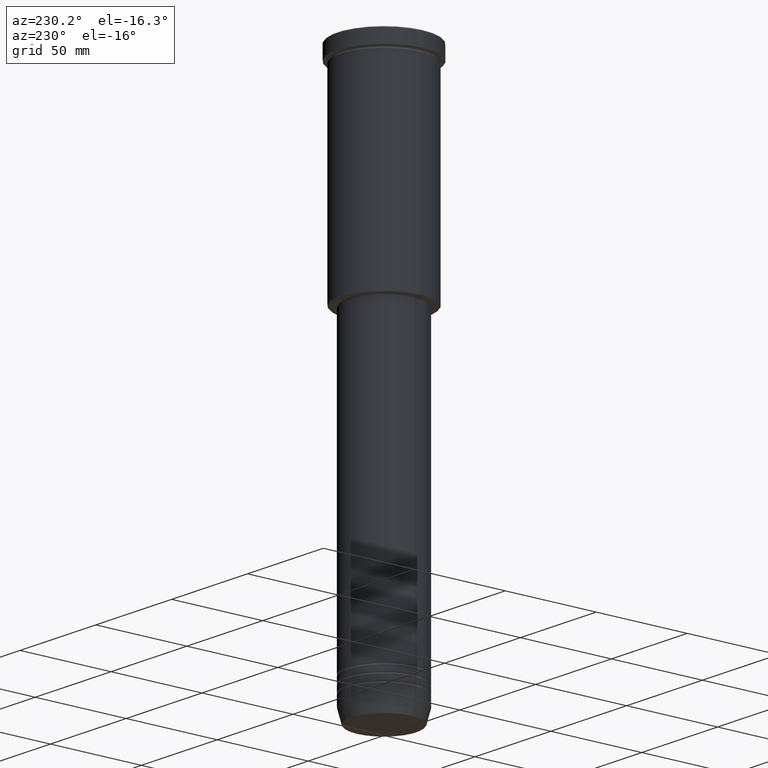
[diagram: clean part render]
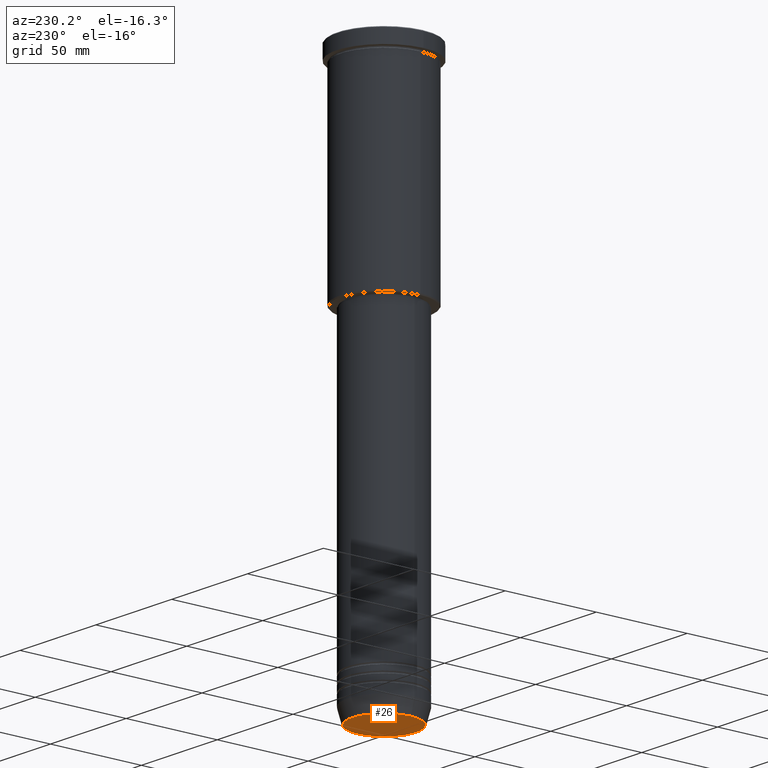
[diagram: same view with one face highlighted and labeled with its STEP entity id]
A machine part, auxiliary view. The second image highlights one B-rep face of the part: STEP entity #26.
In plain terms, the highlighted planar face has unit normal (0, -0, 1).
Its self-contained STEP definition (entity closure, byte-faithful):
#5 = DIRECTION ( 'NONE',  ( 0.000000000000000000, 0.000000000000000000, -1.000000000000000000 ) ) ;
#26 = ADVANCED_FACE ( 'NONE', ( #283 ), #724, .F. ) ;
#29 = CARTESIAN_POINT ( 'NONE',  ( 0.000000000000000000, 0.000000000000000000, -300.0000000000000000 ) ) ;
#47 = VERTEX_POINT ( 'NONE', #266 ) ;
#98 = EDGE_LOOP ( 'NONE', ( #574, #295 ) ) ;
#168 = CARTESIAN_POINT ( 'NONE',  ( 0.000000000000000000, 0.000000000000000000, -300.0000000000000000 ) ) ;
#208 = DIRECTION ( 'NONE',  ( 1.000000000000000000, 0.000000000000000000, 0.000000000000000000 ) ) ;
#266 = CARTESIAN_POINT ( 'NONE',  ( 17.47274296656153680, 0.000000000000000000, -300.0000000000000000 ) ) ;
#283 = FACE_OUTER_BOUND ( 'NONE', #98, .T. ) ;
#295 = ORIENTED_EDGE ( 'NONE', *, *, #674, .T. ) ;
#386 = CIRCLE ( 'NONE', #693, 17.47274296656153680 ) ;
#397 = VERTEX_POINT ( 'NONE', #1064 ) ;
#460 = CARTESIAN_POINT ( 'NONE',  ( 0.000000000000000000, 0.000000000000000000, -300.0000000000000000 ) ) ;
#475 = DIRECTION ( 'NONE',  ( 0.000000000000000000, -0.000000000000000000, 1.000000000000000000 ) ) ;
#486 = AXIS2_PLACEMENT_3D ( 'NONE', #168, #475, #727 ) ;
#495 = DIRECTION ( 'NONE',  ( 1.000000000000000000, 0.000000000000000000, 0.000000000000000000 ) ) ;
#574 = ORIENTED_EDGE ( 'NONE', *, *, #596, .T. ) ;
#596 = EDGE_CURVE ( 'NONE', #47, #397, #1129, .T. ) ;
#622 = AXIS2_PLACEMENT_3D ( 'NONE', #29, #683, #208 ) ;
#674 = EDGE_CURVE ( 'NONE', #397, #47, #386, .T. ) ;
#683 = DIRECTION ( 'NONE',  ( 0.000000000000000000, 0.000000000000000000, -1.000000000000000000 ) ) ;
#693 = AXIS2_PLACEMENT_3D ( 'NONE', #460, #5, #495 ) ;
#724 = PLANE ( 'NONE',  #486 ) ;
#727 = DIRECTION ( 'NONE',  ( 1.000000000000000000, 0.000000000000000000, 0.000000000000000000 ) ) ;
#1064 = CARTESIAN_POINT ( 'NONE',  ( -17.47274296656153680, 2.169366823916868503E-15, -300.0000000000000000 ) ) ;
#1129 = CIRCLE ( 'NONE', #622, 17.47274296656153680 ) ;